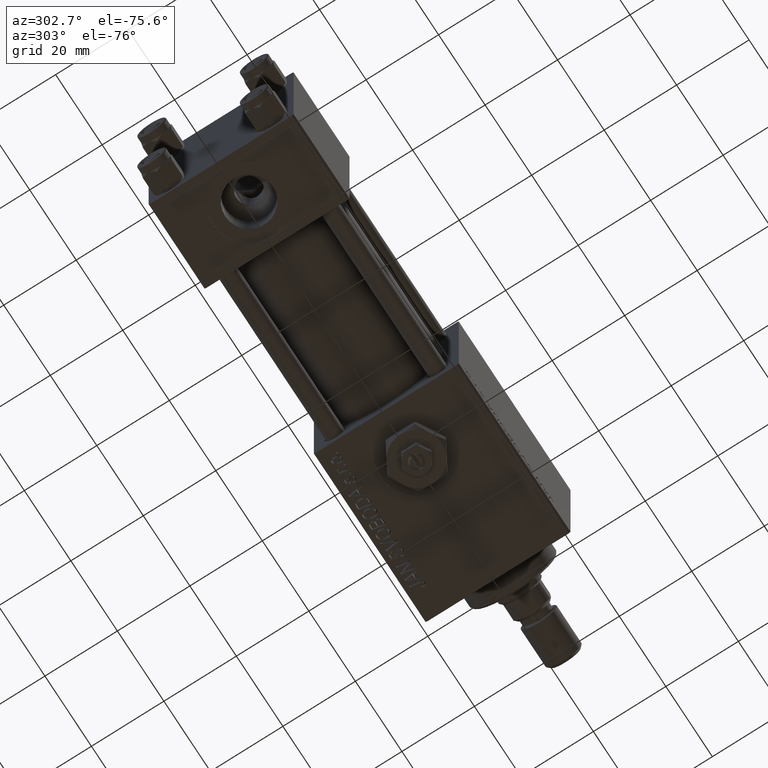
[diagram: clean part render]
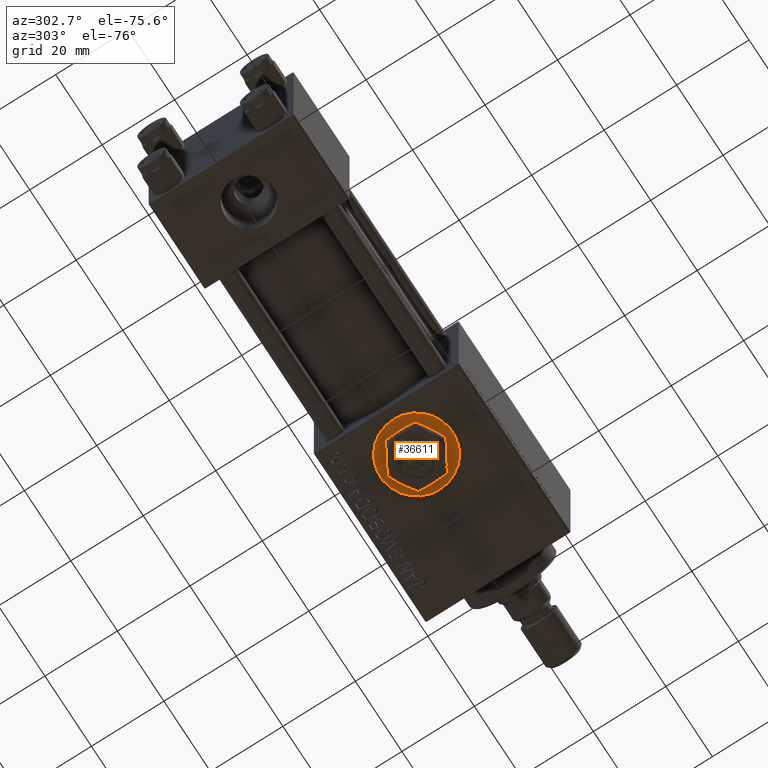
[diagram: same view with one face highlighted and labeled with its STEP entity id]
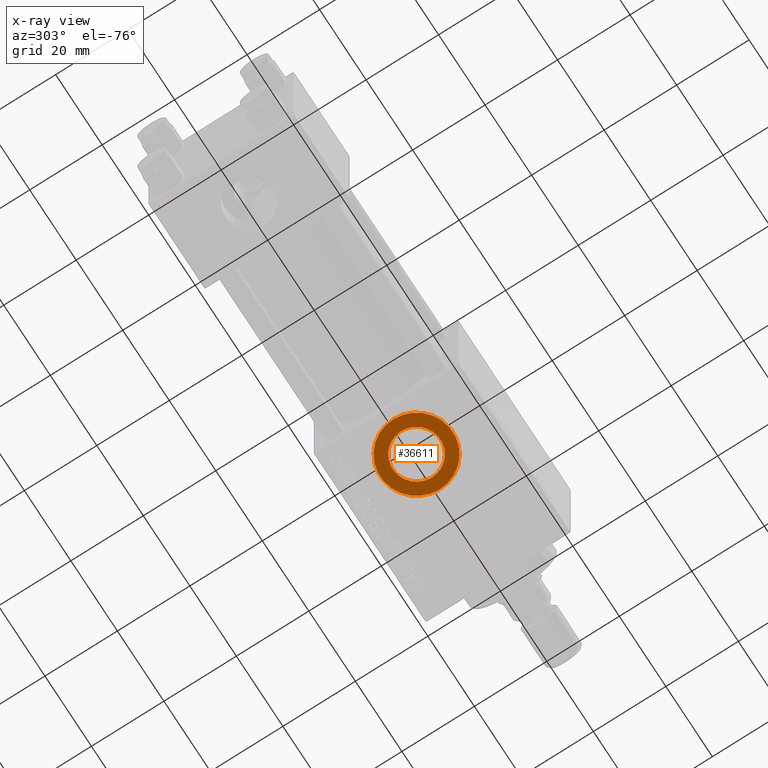
[diagram: x-ray of the same camera — body ghosted, the highlighted face saturated]
A machine part, auxiliary view. The second image highlights one B-rep face of the part: STEP entity #36611.
The next image is the same camera in x-ray: the body ghosted, the highlighted face saturated — about 0% of this face is hidden behind the body in this view.
In plain terms, the highlighted planar face has unit normal (0, 0, -1).
Its self-contained STEP definition (entity closure, byte-faithful):
#1444 = FACE_BOUND ( 'NONE', #2805, .T. ) ;
#2805 = EDGE_LOOP ( 'NONE', ( #12722, #33697 ) ) ;
#4671 = DIRECTION ( 'NONE',  ( -1.000000000000000000, 0.000000000000000000, -0.000000000000000000 ) ) ;
#5812 = CARTESIAN_POINT ( 'NONE',  ( 94.00000000000001421, 1.224646799147354440E-15, -19.80000000000000071 ) ) ;
#7910 = DIRECTION ( 'NONE',  ( -1.000000000000000000, 0.000000000000000000, 0.000000000000000000 ) ) ;
#9459 = ORIENTED_EDGE ( 'NONE', *, *, #46382, .T. ) ;
#9494 = DIRECTION ( 'NONE',  ( 0.000000000000000000, 0.000000000000000000, -1.000000000000000000 ) ) ;
#10737 = EDGE_CURVE ( 'NONE', #36034, #32744, #10913, .T. ) ;
#10886 = EDGE_CURVE ( 'NONE', #30581, #12853, #24526, .T. ) ;
#10913 = CIRCLE ( 'NONE', #40743, 10.00000000000000888 ) ;
#12722 = ORIENTED_EDGE ( 'NONE', *, *, #10886, .F. ) ;
#12853 = VERTEX_POINT ( 'NONE', #21961 ) ;
#13204 = PLANE ( 'NONE',  #23033 ) ;
#13461 = CARTESIAN_POINT ( 'NONE',  ( 84.00000000000000000, 0.000000000000000000, -19.80000000000000071 ) ) ;
#14093 = CARTESIAN_POINT ( 'NONE',  ( 84.00000000000000000, 0.000000000000000000, -19.80000000000000071 ) ) ;
#16020 = AXIS2_PLACEMENT_3D ( 'NONE', #50552, #9494, #33793 ) ;
#17412 = AXIS2_PLACEMENT_3D ( 'NONE', #33129, #24588, #37402 ) ;
#19937 = CARTESIAN_POINT ( 'NONE',  ( 84.00000000000000000, 0.000000000000000000, -19.80000000000000071 ) ) ;
#21066 = AXIS2_PLACEMENT_3D ( 'NONE', #14093, #38655, #45842 ) ;
#21961 = CARTESIAN_POINT ( 'NONE',  ( 90.58000000000001251, 8.058175938389587461E-16, -19.80000000000000071 ) ) ;
#23033 = AXIS2_PLACEMENT_3D ( 'NONE', #13461, #29506, #4671 ) ;
#24526 = CIRCLE ( 'NONE', #16020, 6.580000000000002736 ) ;
#24588 = DIRECTION ( 'NONE',  ( 0.000000000000000000, 0.000000000000000000, -1.000000000000000000 ) ) ;
#25778 = ORIENTED_EDGE ( 'NONE', *, *, #10737, .T. ) ;
#26005 = EDGE_CURVE ( 'NONE', #12853, #30581, #50009, .T. ) ;
#29373 = CIRCLE ( 'NONE', #17412, 10.00000000000000888 ) ;
#29506 = DIRECTION ( 'NONE',  ( 0.000000000000000000, 0.000000000000000000, -1.000000000000000000 ) ) ;
#30581 = VERTEX_POINT ( 'NONE', #30884 ) ;
#30884 = CARTESIAN_POINT ( 'NONE',  ( 77.42000000000000171, 0.000000000000000000, -19.80000000000000071 ) ) ;
#32744 = VERTEX_POINT ( 'NONE', #5812 ) ;
#33129 = CARTESIAN_POINT ( 'NONE',  ( 84.00000000000000000, 0.000000000000000000, -19.80000000000000071 ) ) ;
#33697 = ORIENTED_EDGE ( 'NONE', *, *, #26005, .F. ) ;
#33793 = DIRECTION ( 'NONE',  ( -1.000000000000000000, 0.000000000000000000, 0.000000000000000000 ) ) ;
#36034 = VERTEX_POINT ( 'NONE', #46453 ) ;
#36611 = ADVANCED_FACE ( 'NONE', ( #1444, #41236 ), #13204, .T. ) ;
#37402 = DIRECTION ( 'NONE',  ( -1.000000000000000000, 0.000000000000000000, 0.000000000000000000 ) ) ;
#38655 = DIRECTION ( 'NONE',  ( 0.000000000000000000, 0.000000000000000000, -1.000000000000000000 ) ) ;
#40743 = AXIS2_PLACEMENT_3D ( 'NONE', #19937, #44467, #7910 ) ;
#41236 = FACE_OUTER_BOUND ( 'NONE', #43260, .T. ) ;
#43260 = EDGE_LOOP ( 'NONE', ( #25778, #9459 ) ) ;
#44467 = DIRECTION ( 'NONE',  ( 0.000000000000000000, 0.000000000000000000, -1.000000000000000000 ) ) ;
#45842 = DIRECTION ( 'NONE',  ( -1.000000000000000000, 0.000000000000000000, 0.000000000000000000 ) ) ;
#46382 = EDGE_CURVE ( 'NONE', #32744, #36034, #29373, .T. ) ;
#46453 = CARTESIAN_POINT ( 'NONE',  ( 74.00000000000000000, 0.000000000000000000, -19.80000000000000071 ) ) ;
#50009 = CIRCLE ( 'NONE', #21066, 6.580000000000002736 ) ;
#50552 = CARTESIAN_POINT ( 'NONE',  ( 84.00000000000000000, 0.000000000000000000, -19.80000000000000071 ) ) ;